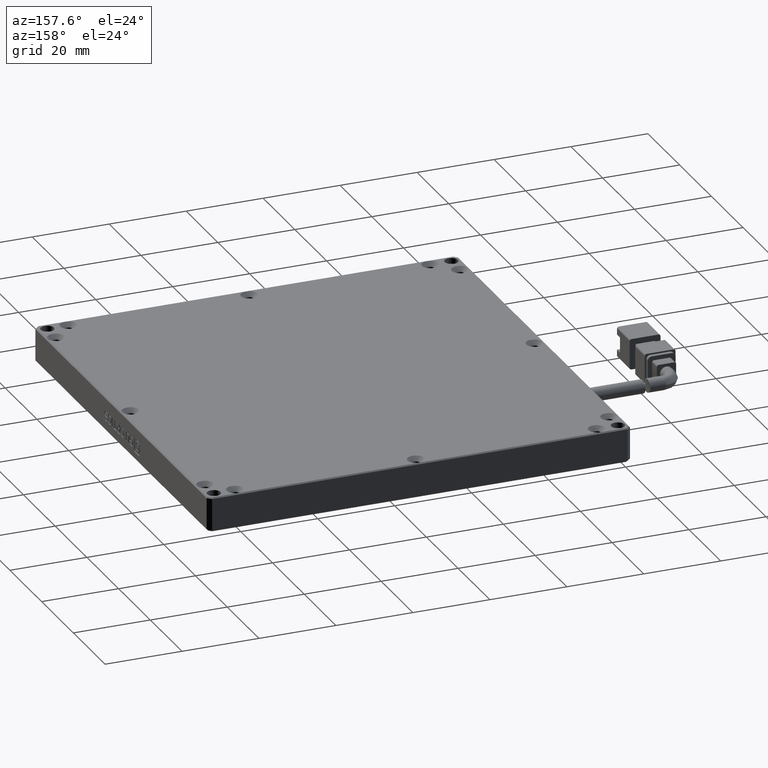
[diagram: clean part render]
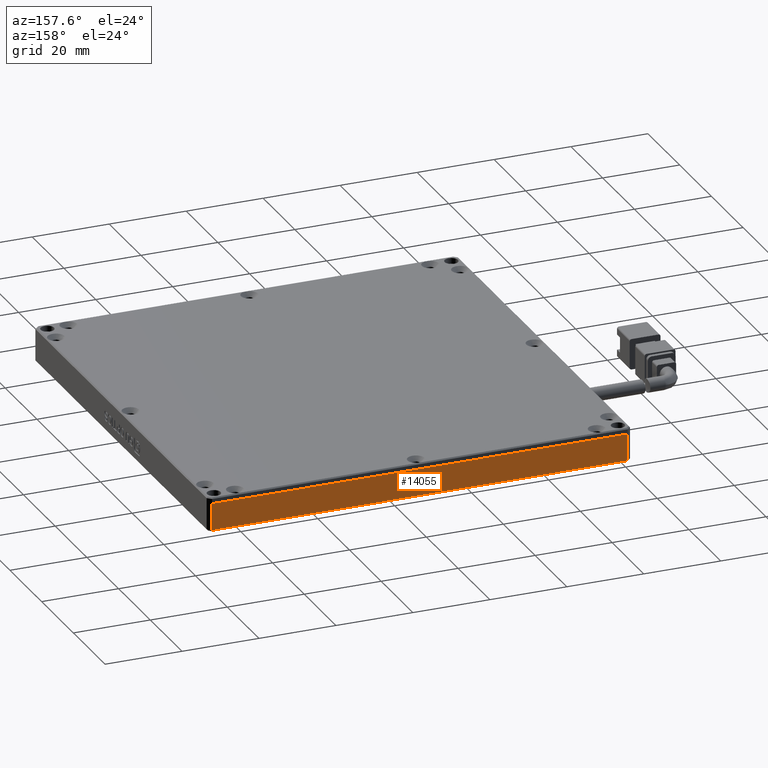
[diagram: same view with one face highlighted and labeled with its STEP entity id]
A machine part, auxiliary view. The second image highlights one B-rep face of the part: STEP entity #14055.
In plain terms, the highlighted planar face has unit normal (0, -1, 0).
Its self-contained STEP definition (entity closure, byte-faithful):
#201 = FACE_OUTER_BOUND ( 'NONE', #14049, .T. ) ;
#248 = LINE ( 'NONE', #709, #7678 ) ;
#261 = ORIENTED_EDGE ( 'NONE', *, *, #3352, .F. ) ;
#709 = CARTESIAN_POINT ( 'NONE',  ( -5.145093547159993900, 63.40015273004998200, -7.000000000023993300 ) ) ;
#1276 = ORIENTED_EDGE ( 'NONE', *, *, #17442, .F. ) ;
#1628 = CARTESIAN_POINT ( 'NONE',  ( -59.14509354715809800, 63.40015273005136700, -2.369249566501570800E-011 ) ) ;
#1860 = EDGE_CURVE ( 'NONE', #8283, #10818, #5235, .T. ) ;
#1973 = VECTOR ( 'NONE', #15204, 1000.000000000000000 ) ;
#2078 = VECTOR ( 'NONE', #16658, 1000.000000000000000 ) ;
#3237 = VECTOR ( 'NONE', #17627, 1000.000000000000000 ) ;
#3352 = EDGE_CURVE ( 'NONE', #8283, #10105, #6222, .T. ) ;
#4264 = EDGE_CURVE ( 'NONE', #10105, #10698, #248, .T. ) ;
#5235 = LINE ( 'NONE', #16301, #3237 ) ;
#5709 = LINE ( 'NONE', #9691, #1973 ) ;
#6222 = LINE ( 'NONE', #8452, #2078 ) ;
#7678 = VECTOR ( 'NONE', #10423, 1000.000000000000000 ) ;
#7874 = PLANE ( 'NONE',  #13932 ) ;
#8247 = DIRECTION ( 'NONE',  ( 0.0000000000000000000, -1.000000000000000000, 0.0000000000000000000 ) ) ;
#8283 = VERTEX_POINT ( 'NONE', #1628 ) ;
#8452 = CARTESIAN_POINT ( 'NONE',  ( -59.14509354716000200, 63.40015273004998200, -3.500000000023749000 ) ) ;
#9424 = ORIENTED_EDGE ( 'NONE', *, *, #1860, .T. ) ;
#9691 = CARTESIAN_POINT ( 'NONE',  ( 48.85490645284002700, 63.40015273004998200, -3.500000000023749400 ) ) ;
#10105 = VERTEX_POINT ( 'NONE', #15531 ) ;
#10423 = DIRECTION ( 'NONE',  ( 1.000000000000000000, 0.0000000000000000000, 0.0000000000000000000 ) ) ;
#10698 = VERTEX_POINT ( 'NONE', #13489 ) ;
#10818 = VERTEX_POINT ( 'NONE', #15112 ) ;
#13489 = CARTESIAN_POINT ( 'NONE',  ( 48.85490645284419000, 63.40015273005020200, -7.000000000024219700 ) ) ;
#13932 = AXIS2_PLACEMENT_3D ( 'NONE', #16452, #8247, #17824 ) ;
#14049 = EDGE_LOOP ( 'NONE', ( #261, #9424, #1276, #17543 ) ) ;
#14055 = ADVANCED_FACE ( 'NONE', ( #201 ), #7874, .F. ) ;
#15112 = CARTESIAN_POINT ( 'NONE',  ( 48.85490645284316700, 63.40015273005131000, -2.369244145490708400E-011 ) ) ;
#15204 = DIRECTION ( 'NONE',  ( 0.0000000000000000000, 0.0000000000000000000, 1.000000000000000000 ) ) ;
#15531 = CARTESIAN_POINT ( 'NONE',  ( -59.14509354715928400, 63.40015273005006700, -7.000000000024736700 ) ) ;
#16301 = CARTESIAN_POINT ( 'NONE',  ( -5.145093547160001000, 63.40015273004999600, -2.364686224609999500E-011 ) ) ;
#16452 = CARTESIAN_POINT ( 'NONE',  ( -61.30509354716000600, 63.40015273004998200, -7.187088229858998600 ) ) ;
#16658 = DIRECTION ( 'NONE',  ( -0.0000000000000000000, -0.0000000000000000000, -1.000000000000000000 ) ) ;
#17442 = EDGE_CURVE ( 'NONE', #10698, #10818, #5709, .T. ) ;
#17543 = ORIENTED_EDGE ( 'NONE', *, *, #4264, .F. ) ;
#17627 = DIRECTION ( 'NONE',  ( 1.000000000000000000, -0.0000000000000000000, -0.0000000000000000000 ) ) ;
#17824 = DIRECTION ( 'NONE',  ( 1.000000000000000000, 0.0000000000000000000, 0.0000000000000000000 ) ) ;